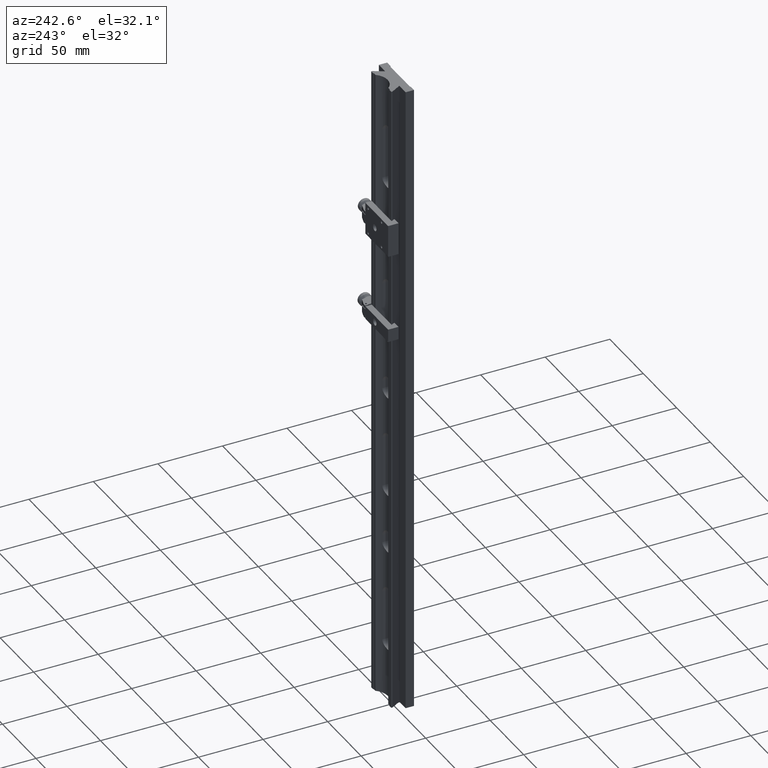
[diagram: clean part render]
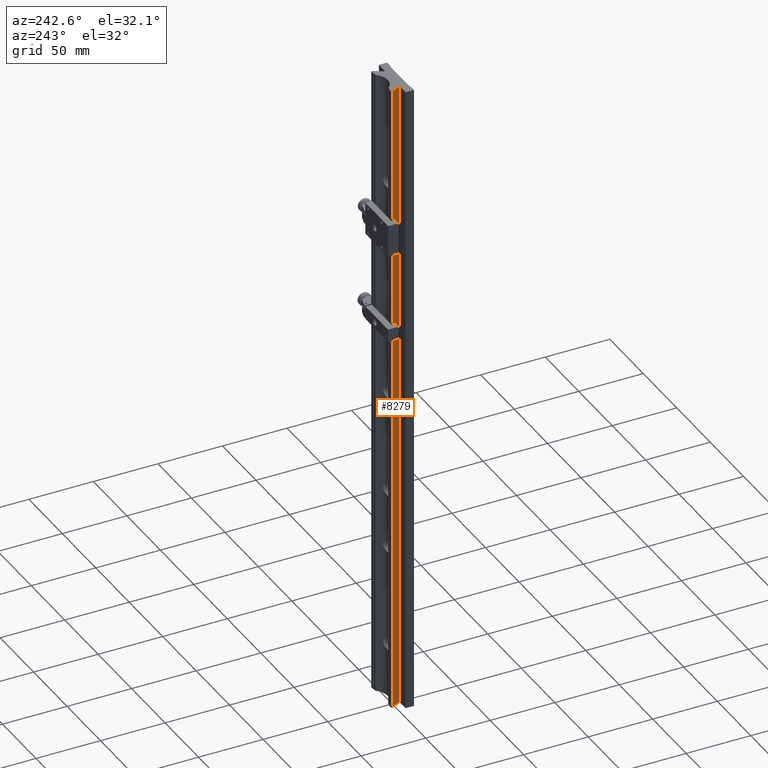
[diagram: same view with one face highlighted and labeled with its STEP entity id]
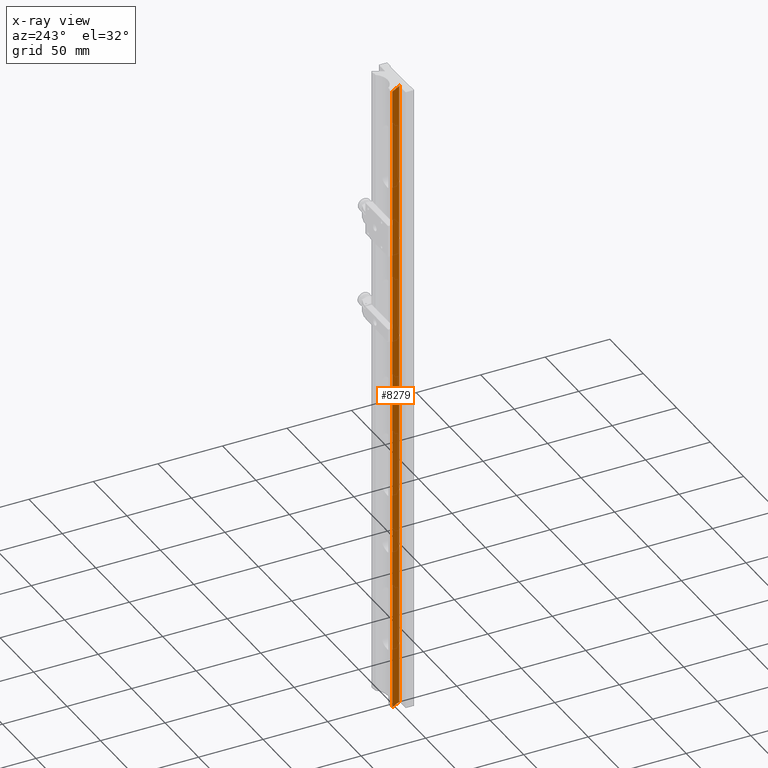
[diagram: x-ray of the same camera — body ghosted, the highlighted face saturated]
A machine part, auxiliary view. The second image highlights one B-rep face of the part: STEP entity #8279.
The next image is the same camera in x-ray: the body ghosted, the highlighted face saturated — about 0% of this face is hidden behind the body in this view.
In plain terms, the highlighted planar face has unit normal (0.866, 0.5, 0).
Its self-contained STEP definition (entity closure, byte-faithful):
#477 = ORIENTED_EDGE ( 'NONE', *, *, #5011, .F. ) ;
#658 = LINE ( 'NONE', #7836, #1853 ) ;
#1318 = CARTESIAN_POINT ( 'NONE',  ( -10.59252271188812422, 0.000000000000000000, 250.0000000000000000 ) ) ;
#1749 = CARTESIAN_POINT ( 'NONE',  ( -14.99999999999999822, 7.633974596215571395, 250.0000000000000000 ) ) ;
#1833 = LINE ( 'NONE', #2521, #3269 ) ;
#1853 = VECTOR ( 'NONE', #5130, 1000.000000000000114 ) ;
#2161 = ORIENTED_EDGE ( 'NONE', *, *, #5247, .T. ) ;
#2230 = LINE ( 'NONE', #4978, #5211 ) ;
#2260 = VECTOR ( 'NONE', #4387, 1000.000000000000114 ) ;
#2521 = CARTESIAN_POINT ( 'NONE',  ( -14.99999999999999822, 7.633974596215567843, 250.0000000000000000 ) ) ;
#2901 = ORIENTED_EDGE ( 'NONE', *, *, #8011, .F. ) ;
#2938 = ORIENTED_EDGE ( 'NONE', *, *, #4829, .T. ) ;
#3269 = VECTOR ( 'NONE', #7767, 1000.000000000000000 ) ;
#3947 = DIRECTION ( 'NONE',  ( 0.8660254037844362651, 0.5000000000000043299, 0.000000000000000000 ) ) ;
#4156 = DIRECTION ( 'NONE',  ( -0.5000000000000042188, 0.8660254037844361541, 0.000000000000000000 ) ) ;
#4164 = EDGE_LOOP ( 'NONE', ( #477, #2938, #2161, #2901 ) ) ;
#4343 = LINE ( 'NONE', #5154, #2260 ) ;
#4387 = DIRECTION ( 'NONE',  ( 0.5000000000000042188, -0.8660254037844362651, 0.000000000000000000 ) ) ;
#4829 = EDGE_CURVE ( 'NONE', #5761, #7056, #1833, .T. ) ;
#4978 = CARTESIAN_POINT ( 'NONE',  ( -10.59252271188812422, 0.000000000000000000, 250.0000000000000000 ) ) ;
#5011 = EDGE_CURVE ( 'NONE', #5761, #6877, #658, .T. ) ;
#5130 = DIRECTION ( 'NONE',  ( 0.5000000000000042188, -0.8660254037844362651, 0.000000000000000000 ) ) ;
#5154 = CARTESIAN_POINT ( 'NONE',  ( -10.59252271188812422, -0.000000000000000000, -250.0000000000000000 ) ) ;
#5211 = VECTOR ( 'NONE', #6775, 1000.000000000000000 ) ;
#5247 = EDGE_CURVE ( 'NONE', #7056, #7783, #4343, .T. ) ;
#5761 = VERTEX_POINT ( 'NONE', #1749 ) ;
#5872 = CARTESIAN_POINT ( 'NONE',  ( -14.99999999999999822, 7.633974596215571395, -250.0000000000000000 ) ) ;
#5876 = PLANE ( 'NONE',  #6450 ) ;
#6450 = AXIS2_PLACEMENT_3D ( 'NONE', #1318, #3947, #4156 ) ;
#6775 = DIRECTION ( 'NONE',  ( -0.000000000000000000, 0.000000000000000000, -1.000000000000000000 ) ) ;
#6877 = VERTEX_POINT ( 'NONE', #7682 ) ;
#7046 = CARTESIAN_POINT ( 'NONE',  ( -10.59252271188812422, -0.000000000000000000, -250.0000000000000000 ) ) ;
#7056 = VERTEX_POINT ( 'NONE', #5872 ) ;
#7198 = FACE_OUTER_BOUND ( 'NONE', #4164, .T. ) ;
#7682 = CARTESIAN_POINT ( 'NONE',  ( -10.59252271188812422, 0.000000000000000000, 250.0000000000000000 ) ) ;
#7767 = DIRECTION ( 'NONE',  ( 0.000000000000000000, 0.000000000000000000, -1.000000000000000000 ) ) ;
#7783 = VERTEX_POINT ( 'NONE', #7046 ) ;
#7836 = CARTESIAN_POINT ( 'NONE',  ( -10.59252271188812422, 0.000000000000000000, 250.0000000000000000 ) ) ;
#8011 = EDGE_CURVE ( 'NONE', #6877, #7783, #2230, .T. ) ;
#8279 = ADVANCED_FACE ( 'NONE', ( #7198 ), #5876, .F. ) ;